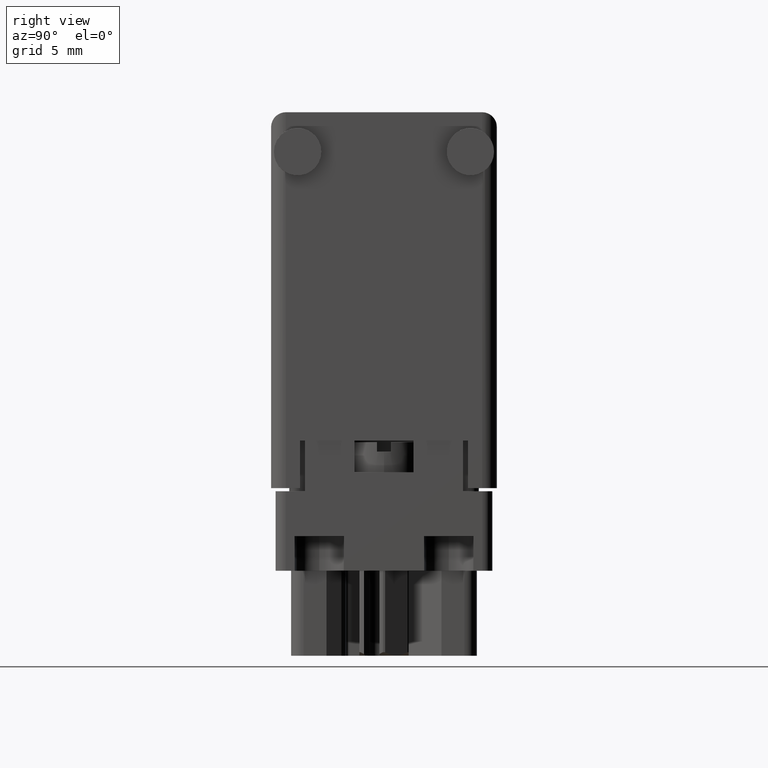
[diagram: clean part render]
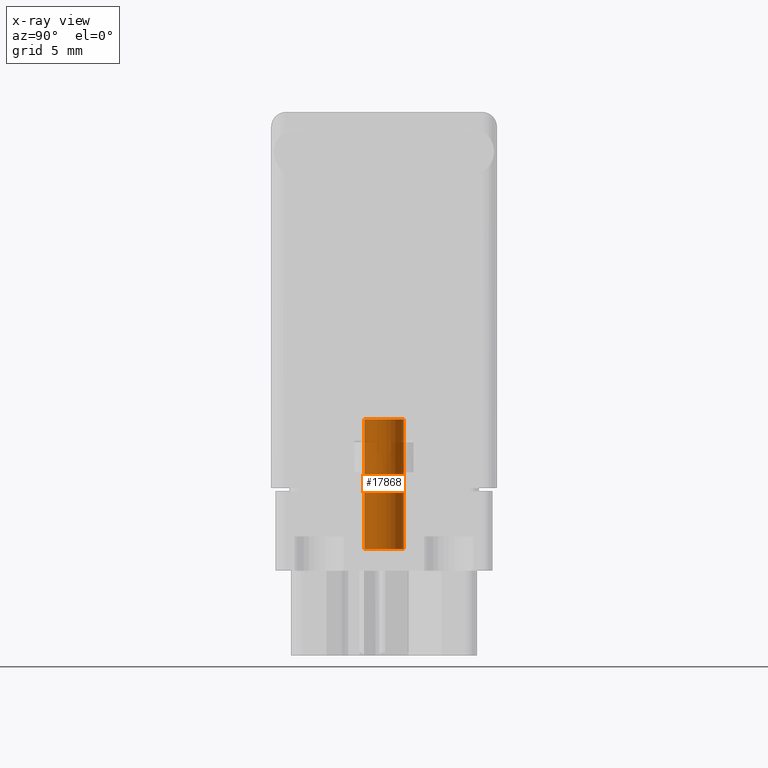
[diagram: x-ray — body ghosted, one internal face saturated and labeled with its STEP entity id]
A machine part, right view, then the same camera in x-ray: the body is ghosted and one INTERNAL B-rep face — a face not visible from any outside direction — is saturated and labeled: STEP entity #17868.
In plain terms, the highlighted cylindrical surface (edge-blend (fillet) strip) has radius 1.5875 mm, axis along (0, 0, -1).
Its self-contained STEP definition (entity closure, byte-faithful):
#157 = VERTEX_POINT ( 'NONE', #9832 ) ;
#2271 = DIRECTION ( 'NONE',  ( -0.0000000000000000000, 1.224647011403845600E-016, -1.000000000000000000 ) ) ;
#3305 = DIRECTION ( 'NONE',  ( -0.0000000000000000000, 1.224647011403845600E-016, -1.000000000000000000 ) ) ;
#3730 = VERTEX_POINT ( 'NONE', #20982 ) ;
#4010 = DIRECTION ( 'NONE',  ( -0.0000000000000000000, 1.224647011403845600E-016, -1.000000000000000000 ) ) ;
#5436 = DIRECTION ( 'NONE',  ( 0.0000000000000000000, 1.000000000000000000, 0.0000000000000000000 ) ) ;
#7976 = DIRECTION ( 'NONE',  ( -0.0000000000000000000, 1.224647011403845600E-016, -1.000000000000000000 ) ) ;
#9832 = CARTESIAN_POINT ( 'NONE',  ( 7.654042494670952900E-018, -0.06249999999999991700, -0.4600000000000000200 ) ) ;
#10013 = CIRCLE ( 'NONE', #13336, 0.06250000000000000000 ) ;
#11771 = VECTOR ( 'NONE', #4010, 39.37007874015748100 ) ;
#12494 = CARTESIAN_POINT ( 'NONE',  ( 7.654042494670954500E-018, -0.06249999999999997200, -0.1638488878597336700 ) ) ;
#13207 = CARTESIAN_POINT ( 'NONE',  ( 0.0000000000000000000, 0.06249999999999997200, -0.1638488878597336700 ) ) ;
#13336 = AXIS2_PLACEMENT_3D ( 'NONE', #22694, #3305, #14231 ) ;
#14231 = DIRECTION ( 'NONE',  ( 0.0000000000000000000, 1.000000000000000000, 1.365923996832131600E-016 ) ) ;
#15245 = LINE ( 'NONE', #12494, #11771 ) ;
#16584 = AXIS2_PLACEMENT_3D ( 'NONE', #30269, #7976, #5436 ) ;
#17868 = ADVANCED_FACE ( 'NONE', ( #34403 ), #32678, .T. ) ;
#18717 = VERTEX_POINT ( 'NONE', #28385 ) ;
#19228 = EDGE_CURVE ( 'NONE', #31009, #157, #15245, .T. ) ;
#19563 = EDGE_CURVE ( 'NONE', #18717, #3730, #31765, .T. ) ;
#20982 = CARTESIAN_POINT ( 'NONE',  ( 0.0000000000000000000, 0.06249999999999997900, -0.4600000000000000200 ) ) ;
#22073 = ORIENTED_EDGE ( 'NONE', *, *, #34752, .T. ) ;
#22617 = VECTOR ( 'NONE', #32997, 39.37007874015748100 ) ;
#22694 = CARTESIAN_POINT ( 'NONE',  ( 0.0000000000000000000, -1.394247002690743900E-017, -0.05000000000000001000 ) ) ;
#23876 = CARTESIAN_POINT ( 'NONE',  ( 7.654042494670960600E-018, -0.06250000000000002800, -0.05000000000000002400 ) ) ;
#25116 = EDGE_CURVE ( 'NONE', #3730, #157, #34433, .T. ) ;
#27894 = AXIS2_PLACEMENT_3D ( 'NONE', #35993, #2271, #32860 ) ;
#28385 = CARTESIAN_POINT ( 'NONE',  ( 0.0000000000000000000, 0.06249999999999997900, -0.05000000000000000300 ) ) ;
#29246 = ORIENTED_EDGE ( 'NONE', *, *, #19228, .T. ) ;
#30269 = CARTESIAN_POINT ( 'NONE',  ( 0.0000000000000000000, 0.0000000000000000000, -0.1638488878597336700 ) ) ;
#30619 = ORIENTED_EDGE ( 'NONE', *, *, #25116, .F. ) ;
#30724 = EDGE_LOOP ( 'NONE', ( #22073, #29246, #30619, #33777 ) ) ;
#31009 = VERTEX_POINT ( 'NONE', #23876 ) ;
#31765 = LINE ( 'NONE', #13207, #22617 ) ;
#32678 = CYLINDRICAL_SURFACE ( 'NONE', #16584, 0.06249999999999997200 ) ;
#32860 = DIRECTION ( 'NONE',  ( 0.0000000000000000000, 1.000000000000000000, 0.0000000000000000000 ) ) ;
#32997 = DIRECTION ( 'NONE',  ( -0.0000000000000000000, 1.224647011403845600E-016, -1.000000000000000000 ) ) ;
#33777 = ORIENTED_EDGE ( 'NONE', *, *, #19563, .F. ) ;
#34403 = FACE_OUTER_BOUND ( 'NONE', #30724, .T. ) ;
#34433 = CIRCLE ( 'NONE', #27894, 0.06249999999999995100 ) ;
#34752 = EDGE_CURVE ( 'NONE', #18717, #31009, #10013, .T. ) ;
#35993 = CARTESIAN_POINT ( 'NONE',  ( 0.0000000000000000000, 3.626805744065022900E-017, -0.4600000000000000200 ) ) ;